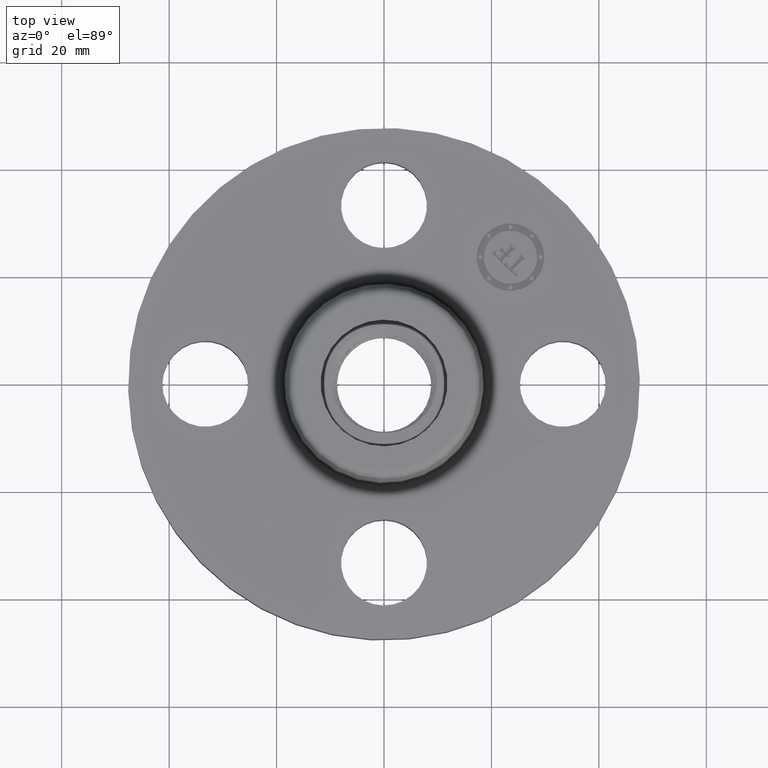
[diagram: clean part render]
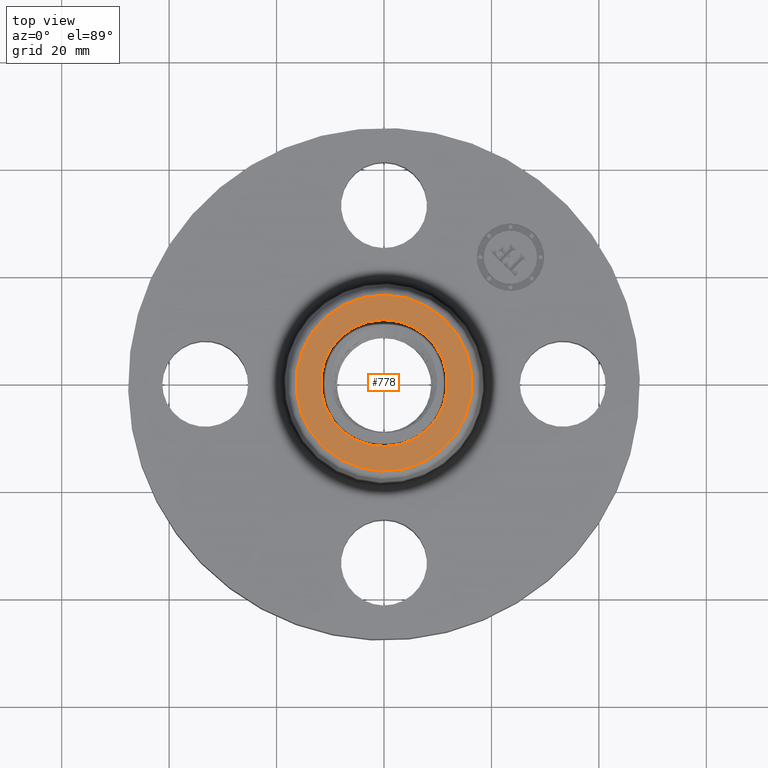
[diagram: same view with one face highlighted and labeled with its STEP entity id]
A machine part, top view. The second image highlights one B-rep face of the part: STEP entity #778.
In plain terms, the highlighted planar face has unit normal (0, 0, -1).
Its self-contained STEP definition (entity closure, byte-faithful):
#371=AXIS2_PLACEMENT_3D('Circle Axis2P3D',#369,#370,$) ;
#397=AXIS2_PLACEMENT_3D('Circle Axis2P3D',#395,#396,$) ;
#607=AXIS2_PLACEMENT_3D('Circle Axis2P3D',#605,#606,$) ;
#626=AXIS2_PLACEMENT_3D('Circle Axis2P3D',#624,#625,$) ;
#768=AXIS2_PLACEMENT_3D('Plane Axis2P3D',#765,#766,#767) ;
#369=CARTESIAN_POINT('Axis2P3D Location',(0.,0.,0.810000000003)) ;
#373=CARTESIAN_POINT('Vertex',(-0.222932875452,0.408075891281,0.810000000003)) ;
#375=CARTESIAN_POINT('Vertex',(0.222932875452,-0.408075891281,0.810000000003)) ;
#395=CARTESIAN_POINT('Axis2P3D Location',(0.,0.,0.810000000003)) ;
#602=CARTESIAN_POINT('Vertex',(0.309225952511,0.566034309307,0.810000000003)) ;
#605=CARTESIAN_POINT('Axis2P3D Location',(0.,0.,0.810000000003)) ;
#609=CARTESIAN_POINT('Vertex',(-0.309225952511,-0.566034309307,0.810000000003)) ;
#624=CARTESIAN_POINT('Axis2P3D Location',(0.,0.,0.810000000003)) ;
#765=CARTESIAN_POINT('Axis2P3D Location',(0.,0.644992658112,0.810000000003)) ;
#370=DIRECTION('Axis2P3D Direction',(0.,0.,0.0393700787402)) ;
#396=DIRECTION('Axis2P3D Direction',(0.,0.,0.0393700787402)) ;
#606=DIRECTION('Axis2P3D Direction',(0.,0.,-0.0393700787402)) ;
#625=DIRECTION('Axis2P3D Direction',(0.,0.,-0.0393700787402)) ;
#766=DIRECTION('Axis2P3D Direction',(0.,0.,-0.0393700787402)) ;
#767=DIRECTION('Axis2P3D XDirection',(0.0393700787402,0.,0.)) ;
#771=ORIENTED_EDGE('',*,*,#611,.F.) ;
#772=ORIENTED_EDGE('',*,*,#628,.F.) ;
#775=ORIENTED_EDGE('',*,*,#377,.T.) ;
#776=ORIENTED_EDGE('',*,*,#399,.T.) ;
#777=FACE_BOUND('',#774,.T.) ;
#778=ADVANCED_FACE('PartBody',(#773,#777),#769,.F.) ;
#372=CIRCLE('generated circle',#371,0.465000000002) ;
#398=CIRCLE('generated circle',#397,0.465000000002) ;
#608=CIRCLE('generated circle',#607,0.644992658112) ;
#627=CIRCLE('generated circle',#626,0.644992658112) ;
#377=EDGE_CURVE('',#374,#376,#372,.F.) ;
#399=EDGE_CURVE('',#376,#374,#398,.F.) ;
#611=EDGE_CURVE('',#603,#610,#608,.T.) ;
#628=EDGE_CURVE('',#610,#603,#627,.T.) ;
#770=EDGE_LOOP('',(#771,#772)) ;
#774=EDGE_LOOP('',(#775,#776)) ;
#773=FACE_OUTER_BOUND('',#770,.T.) ;
#769=PLANE('',#768) ;
#374=VERTEX_POINT('',#373) ;
#376=VERTEX_POINT('',#375) ;
#603=VERTEX_POINT('',#602) ;
#610=VERTEX_POINT('',#609) ;